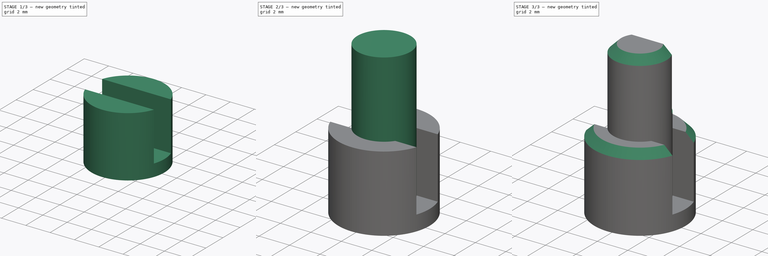
[diagram: build sequence overview — one tinted view per stage of 3, left to right]
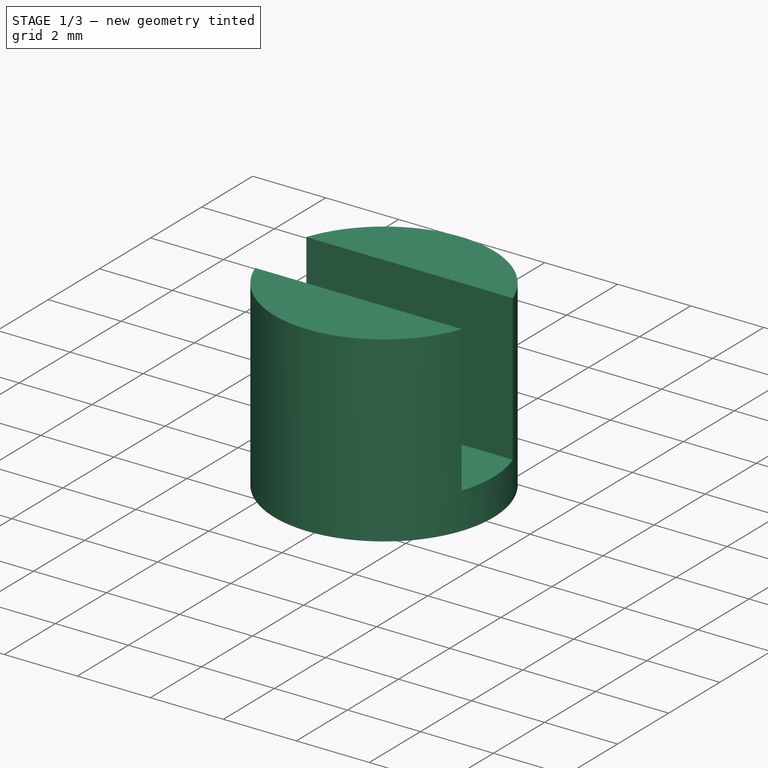
[diagram: stage 1 of 3 — iso view after this stage's code; geometry added in this stage tinted green]
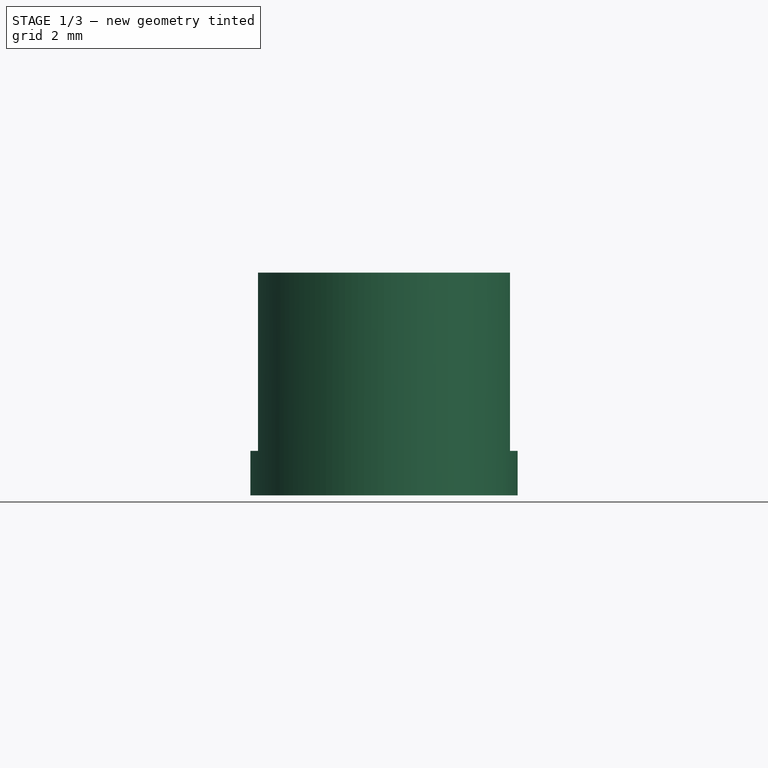
[diagram: stage 1 of 3 — front view after this stage's code; geometry added in this stage tinted green]
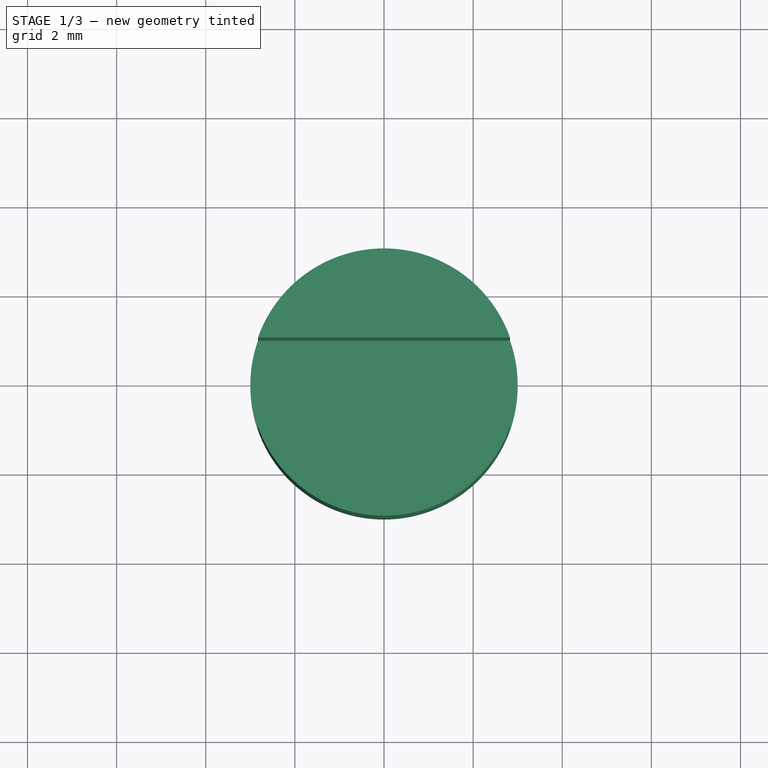
[diagram: stage 1 of 3 — top view after this stage's code; geometry added in this stage tinted green]
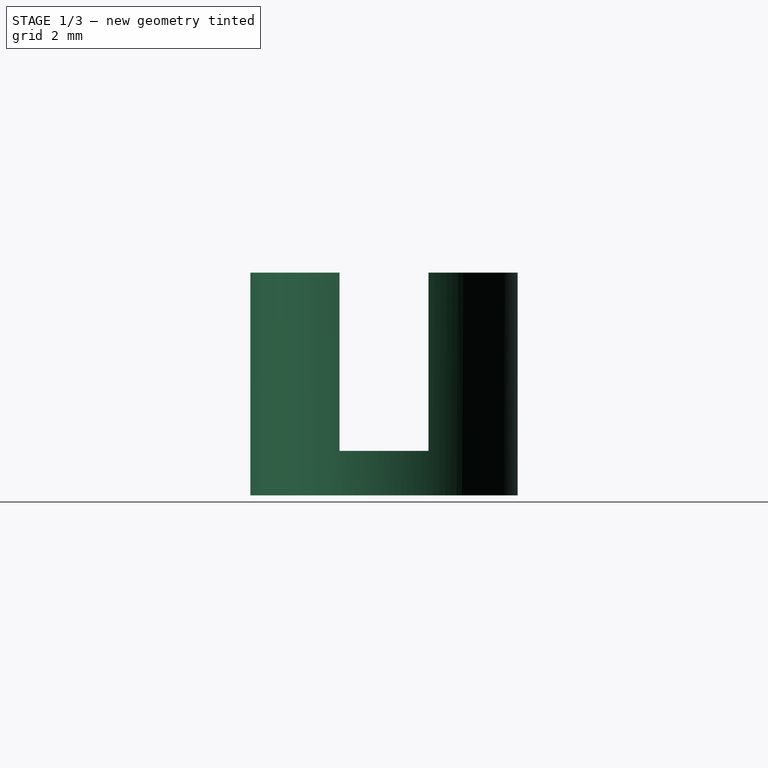
[diagram: stage 1 of 3 — right view after this stage's code; geometry added in this stage tinted green]
FCSTD DOCUMENT  (FreeCAD 0.19R16699 (Git))
Label: RD912DF_Shaft
License: All rights reserved
LicenseURL: http://en.wikipedia.org/wiki/All_rights_reserved
objects: Sketcher::SketchObject×4, PartDesign::Pad×2, PartDesign::Pocket×2, PartDesign::Chamfer×1, PartDesign::Body×1
note: 14 computed .brp shape members not serialized (recipe doc carries the construction recipe); baked Part::Feature solids carry a one-line shape summary decoded from their .brp

FEATURE [Sketcher::SketchObject] Sketch
  AttachmentOffset = pos=(0,0,0) rot=(0,0,1;1.5708rad)
  MapMode = 5
  Placement = pos=(0,0,0) rot=(0,0,1;1.5708rad)
  Support = -> [XY_Plane]
  sketch-geometry (1):
    g0: Circle CenterX=0 CenterY=0 CenterZ=0 NormalX=0 NormalY=0 NormalZ=1 AngleXU=0 Radius=3
  constraints (2):
    c: Coincident(g0,g-1)
    c: Radius(g0) = 3
FEATURE [PartDesign::Pad] Pad
  Length = 5
  Length2 = 100
  Profile = -> Sketch
  Type = 0
FEATURE [Sketcher::SketchObject] Sketch001
  AttachmentOffset = pos=(0,0,5) rot=(0,0,1;0rad)
  MapMode = 5
  Placement = pos=(0,0,5) rot=(0,0,1;0rad)
  Support = -> [XY_Plane]
  sketch-geometry (4):
    g0: LineSegment StartX=-7.84257 StartY=1 StartZ=0 EndX=7.84257 EndY=1 EndZ=0
    g1: LineSegment StartX=7.84257 StartY=1 StartZ=0 EndX=7.84257 EndY=-1 EndZ=0
    g2: LineSegment StartX=7.84257 StartY=-1 StartZ=0 EndX=-7.84257 EndY=-1 EndZ=0
    g3: LineSegment StartX=-7.84257 StartY=-1 StartZ=0 EndX=-7.84257 EndY=1 EndZ=0
  constraints (9):
    c: Coincident(g0,g1)
    c: Coincident(g1,g2)
    c: Coincident(g2,g3)
    c: Coincident(g3,g0)
    c: Horizontal(g2)
    c: Vertical(g3)
    c: Symmetric(g1,g0,g-1)
    c: Symmetric(g0,g0,g-2)
    c: DistanceY(g1,g1) = 2
FEATURE [PartDesign::Pocket] Pocket
  BaseFeature = -> Pad
  Length = 4
  Length2 = 100
  Profile = -> Sketch001
  Type = 0
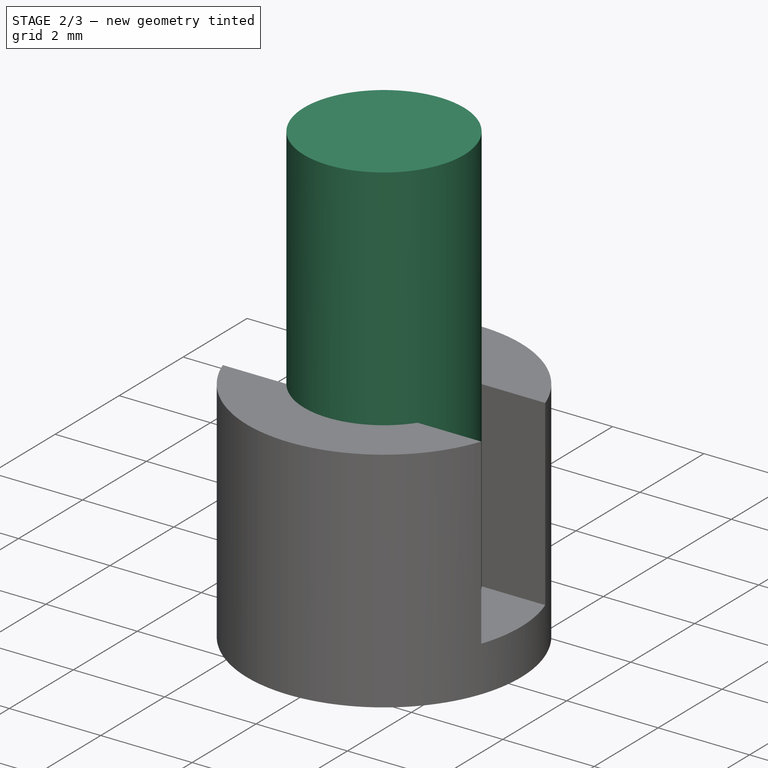
[diagram: stage 2 of 3 — iso view after this stage's code; geometry added in this stage tinted green]
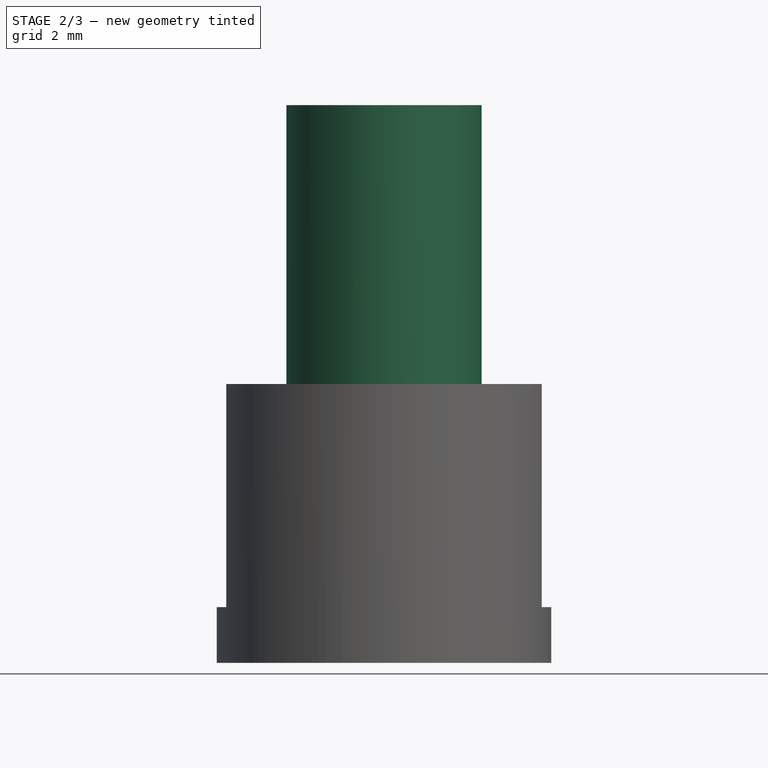
[diagram: stage 2 of 3 — front view after this stage's code; geometry added in this stage tinted green]
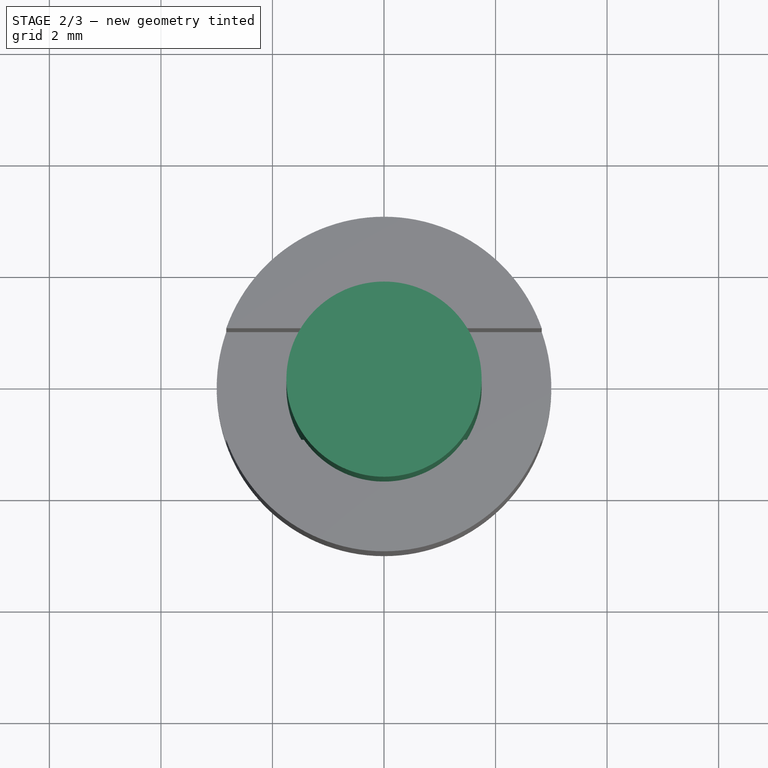
[diagram: stage 2 of 3 — top view after this stage's code; geometry added in this stage tinted green]
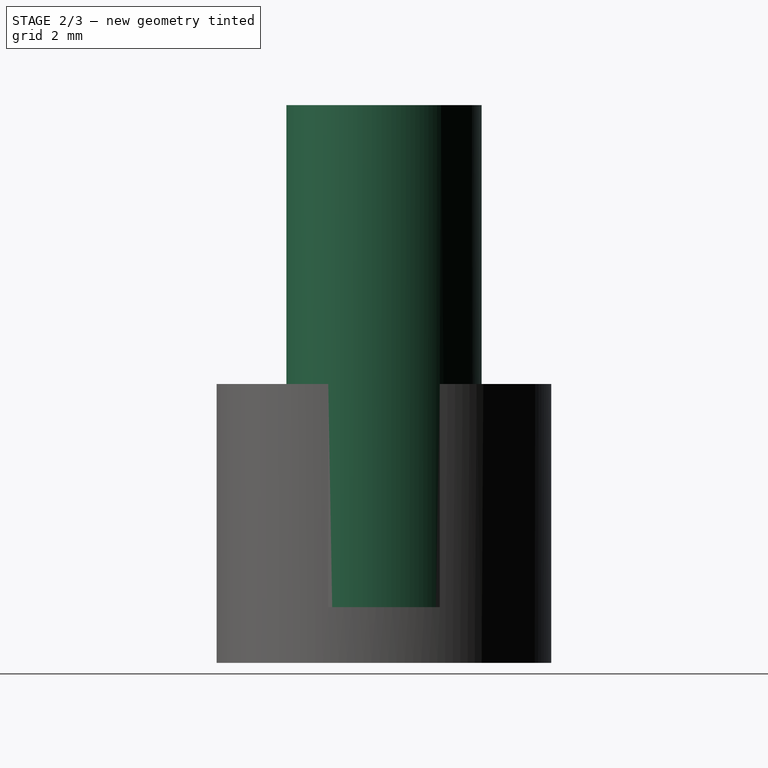
[diagram: stage 2 of 3 — right view after this stage's code; geometry added in this stage tinted green]
FEATURE [Sketcher::SketchObject] Sketch002
  AttachmentOffset = pos=(0,0,0) rot=(0,0,1;1.5708rad)
  MapMode = 5
  Placement = pos=(0,0,0) rot=(0,0,1;1.5708rad)
  Support = -> [XY_Plane]
  sketch-geometry (1):
    g0: Circle CenterX=0 CenterY=0 CenterZ=0 NormalX=0 NormalY=0 NormalZ=1 AngleXU=0 Radius=1.75
  constraints (2):
    c: Coincident(g0,g-1)
    c: Radius(g0) = 1.75
FEATURE [PartDesign::Pad] Pad001
  BaseFeature = -> Pocket
  Length = 10
  Length2 = 100
  Profile = -> Sketch002
  Type = 0
  expr: Length = 10
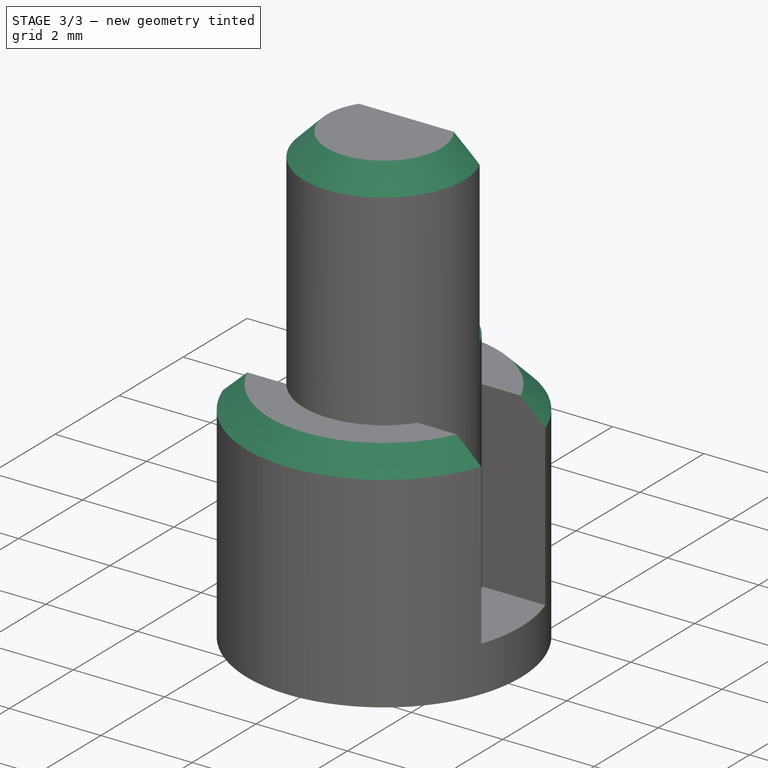
[diagram: stage 3 of 3 — iso view after this stage's code; geometry added in this stage tinted green]
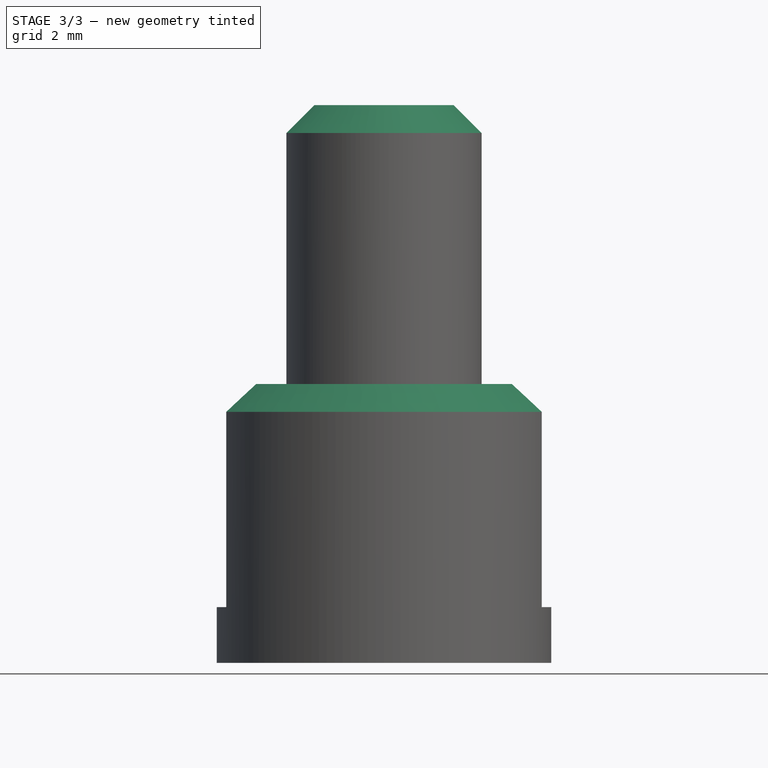
[diagram: stage 3 of 3 — front view after this stage's code; geometry added in this stage tinted green]
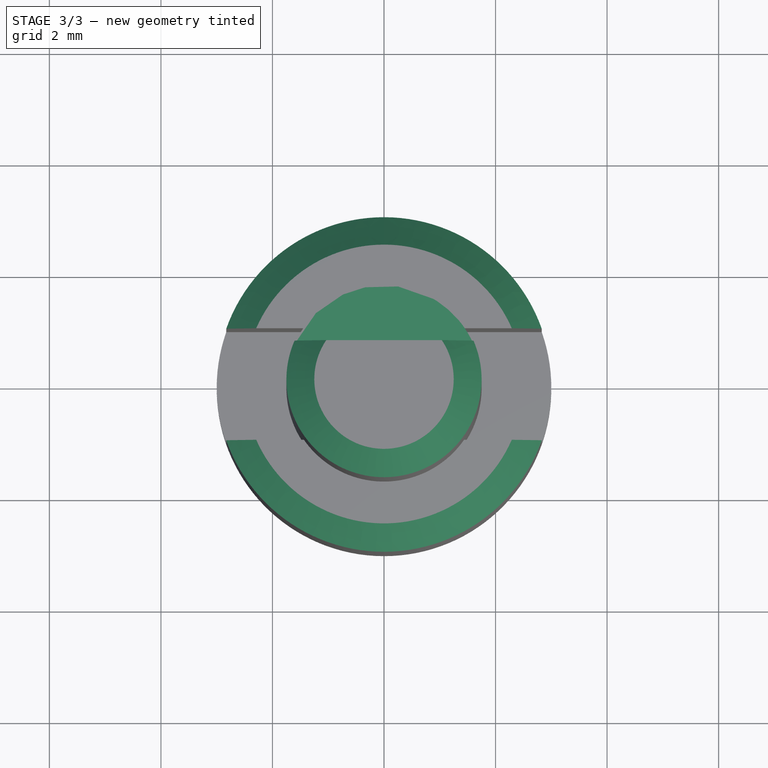
[diagram: stage 3 of 3 — top view after this stage's code; geometry added in this stage tinted green]
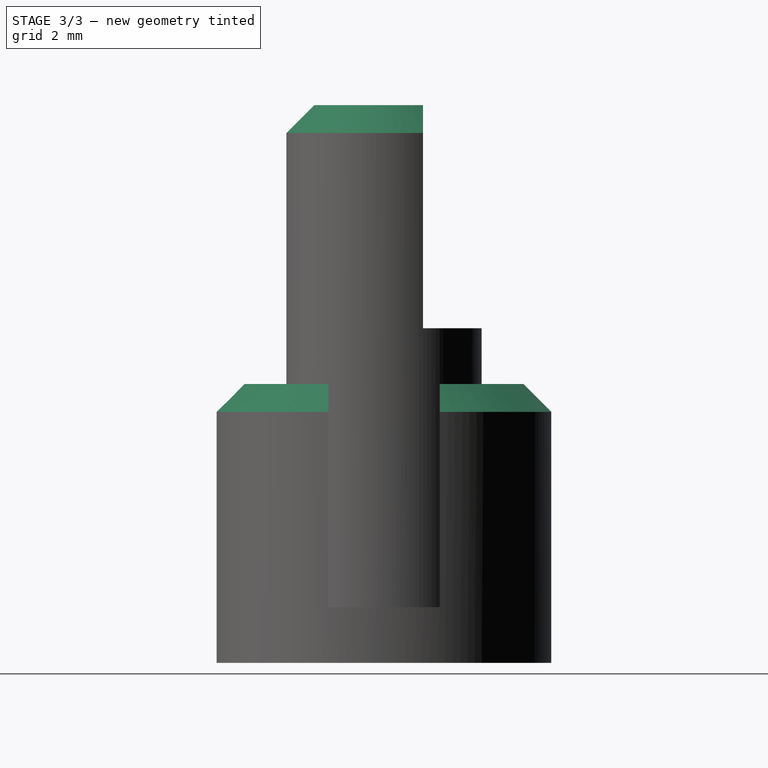
[diagram: stage 3 of 3 — right view after this stage's code; geometry added in this stage tinted green]
FEATURE [Sketcher::SketchObject] Sketch003
  AttachmentOffset = pos=(0,0,10) rot=(0,0,1;0rad)
  MapMode = 5
  Placement = pos=(0,0,10) rot=(0,0,1;0rad)
  Support = -> [XY_Plane]
  sketch-geometry (4):
    g0: LineSegment StartX=-4.42515 StartY=0.7 StartZ=0 EndX=4.26225 EndY=0.7 EndZ=0
    g1: LineSegment StartX=4.26225 StartY=0.7 StartZ=0 EndX=4.26225 EndY=3.96363 EndZ=0
    g2: LineSegment StartX=4.26225 StartY=3.96363 StartZ=0 EndX=-4.42515 EndY=3.96363 EndZ=0
    g3: LineSegment StartX=-4.42515 StartY=3.96363 StartZ=0 EndX=-4.42515 EndY=0.7 EndZ=0
  constraints (9):
    c: Coincident(g0,g1)
    c: Coincident(g1,g2)
    c: Coincident(g2,g3)
    c: Coincident(g3,g0)
    c: Horizontal(g0)
    c: Horizontal(g2)
    c: Vertical(g1)
    c: Vertical(g3)
    c: DistanceY(g-1,g0) = 0.7
FEATURE [PartDesign::Pocket] Pocket001
  BaseFeature = -> Pad001
  Length = 4
  Length2 = 100
  Profile = -> Sketch003
  Type = 0
FEATURE [PartDesign::Chamfer] Chamfer
  Base = -> Pocket001 [Edge33,Edge7,Edge11,Edge3]
  BaseFeature = -> Pocket001
  Size = 0.5
FEATURE [PartDesign::Body] Body
  Group = -> [Sketch,Pad,Sketch001,Pocket,Sketch002,Pad001,Sketch003,Pocket001,Chamfer]
  Origin = -> Origin
  Tip = -> Chamfer
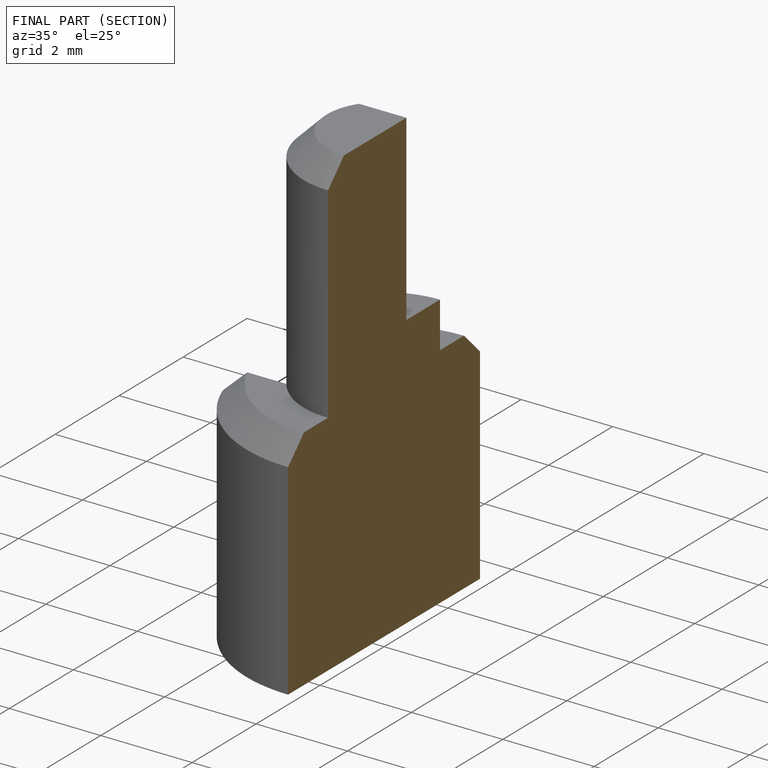
[diagram: finished part — half-section view (interior)]
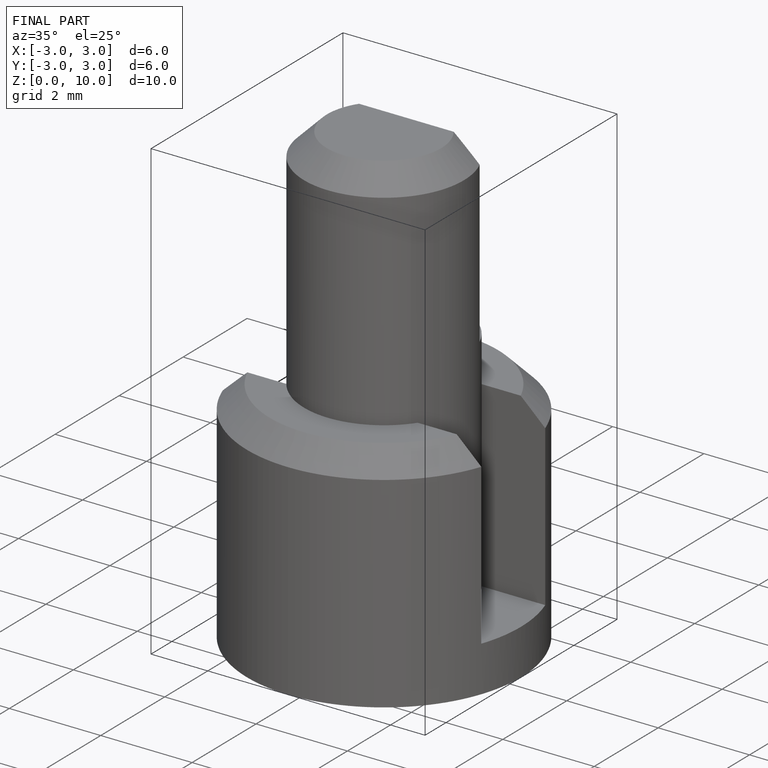
[diagram: finished part — iso view with bounding-box wireframe]
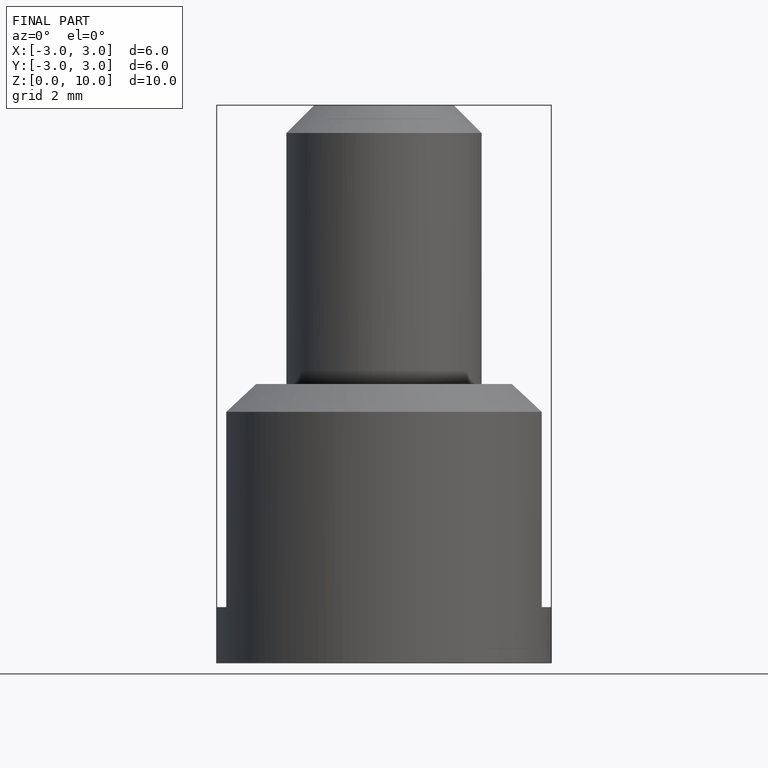
[diagram: finished part — front view with bounding-box wireframe]
